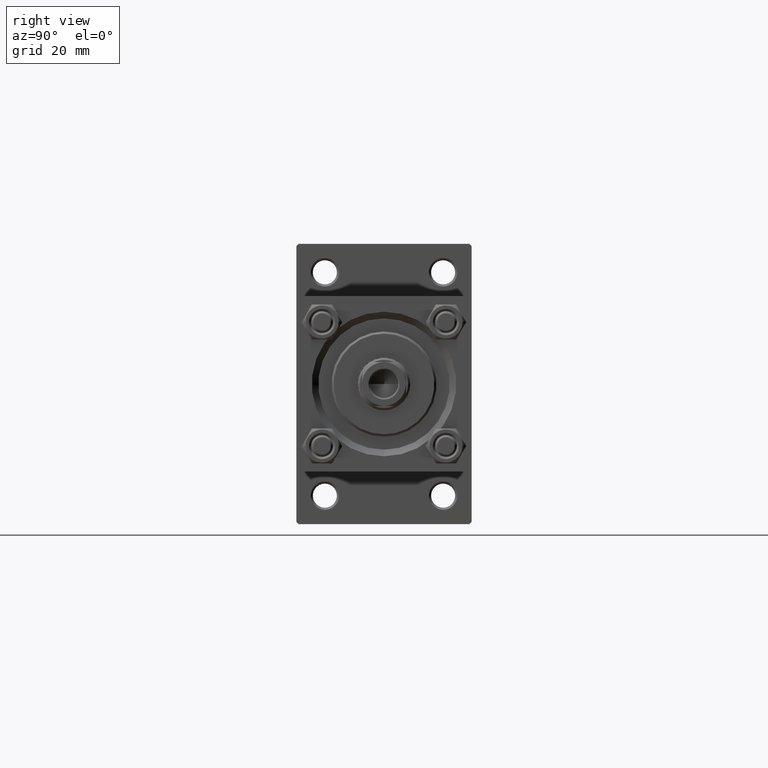
[diagram: clean part render]
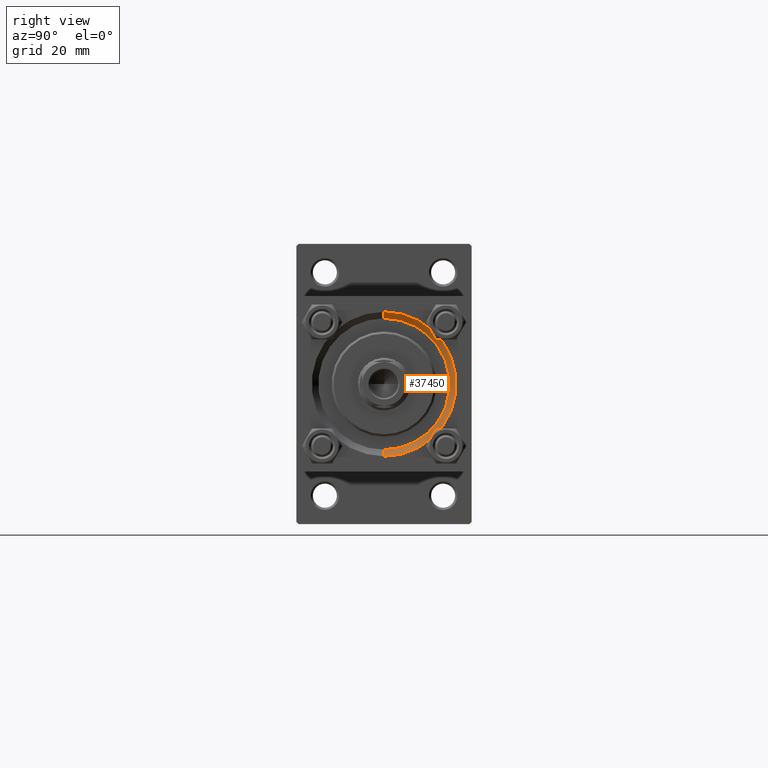
[diagram: same view with one face highlighted and labeled with its STEP entity id]
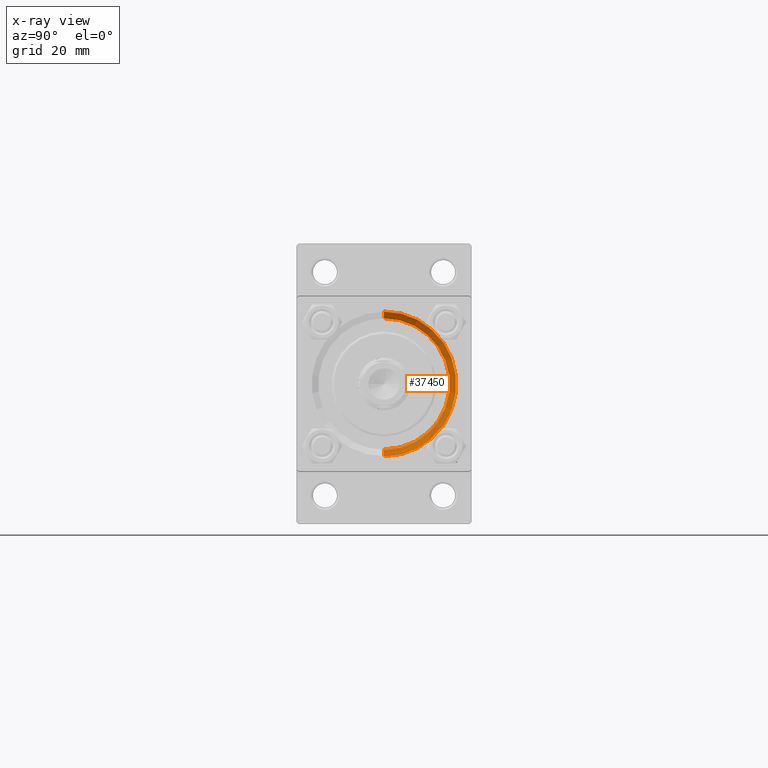
[diagram: x-ray of the same camera — body ghosted, the highlighted face saturated]
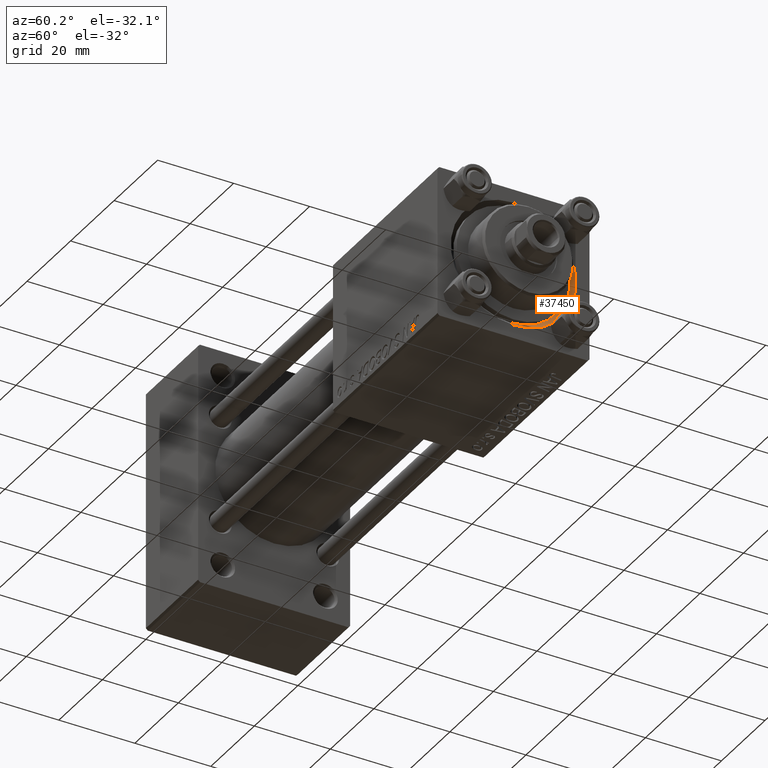
[diagram: same view with one face highlighted and labeled with its STEP entity id]
A machine part, right view. The second image highlights one B-rep face of the part: STEP entity #37450.
The next image is the same camera in x-ray: the body ghosted, the highlighted face saturated — about 0% of this face is hidden behind the body in this view.
A second angle (auxiliary view) of the same face is appended — the face is thin or edge-on in the first view.
In plain terms, the highlighted conical surface has half-angle 45 deg.
Its self-contained STEP definition (entity closure, byte-faithful):
#2350 = CARTESIAN_POINT ( 'NONE',  ( 132.5000000000000000, 1.836970198721029589E-15, 15.00000000000000000 ) ) ;
#3123 = FACE_OUTER_BOUND ( 'NONE', #22896, .T. ) ;
#4132 = AXIS2_PLACEMENT_3D ( 'NONE', #24729, #19943, #8603 ) ;
#4599 = ORIENTED_EDGE ( 'NONE', *, *, #38731, .F. ) ;
#5025 = DIRECTION ( 'NONE',  ( 1.000000000000000000, 0.000000000000000000, 0.000000000000000000 ) ) ;
#5759 = CIRCLE ( 'NONE', #4132, 16.49999999999998579 ) ;
#6866 = DIRECTION ( 'NONE',  ( 0.7071067811865507924, 0.000000000000000000, -0.7071067811865441310 ) ) ;
#7007 = CARTESIAN_POINT ( 'NONE',  ( 134.0000000000000000, 0.000000000000000000, -16.49999999999998579 ) ) ;
#8576 = CIRCLE ( 'NONE', #40044, 15.00000000000000000 ) ;
#8603 = DIRECTION ( 'NONE',  ( 0.000000000000000000, 0.000000000000000000, 1.000000000000000000 ) ) ;
#11186 = DIRECTION ( 'NONE',  ( 0.000000000000000000, 0.000000000000000000, -1.000000000000000000 ) ) ;
#12087 = DIRECTION ( 'NONE',  ( 0.000000000000000000, 0.000000000000000000, 1.000000000000000000 ) ) ;
#13414 = VERTEX_POINT ( 'NONE', #7007 ) ;
#13455 = CARTESIAN_POINT ( 'NONE',  ( 132.5000000000000000, 1.836970198721029589E-15, 15.00000000000000000 ) ) ;
#13780 = CONICAL_SURFACE ( 'NONE', #42005, 15.00000000000000000, 0.7853981633974437271 ) ;
#14390 = VERTEX_POINT ( 'NONE', #44341 ) ;
#17213 = DIRECTION ( 'NONE',  ( 0.7071067811865507924, 8.659560562354892183E-17, 0.7071067811865441310 ) ) ;
#18209 = LINE ( 'NONE', #41445, #40007 ) ;
#18492 = CARTESIAN_POINT ( 'NONE',  ( 132.5000000000000000, 0.000000000000000000, 0.000000000000000000 ) ) ;
#19943 = DIRECTION ( 'NONE',  ( -1.000000000000000000, -0.000000000000000000, -0.000000000000000000 ) ) ;
#20787 = VERTEX_POINT ( 'NONE', #43971 ) ;
#21779 = EDGE_CURVE ( 'NONE', #45387, #20787, #43757, .T. ) ;
#21926 = EDGE_CURVE ( 'NONE', #14390, #13414, #18209, .T. ) ;
#22896 = EDGE_LOOP ( 'NONE', ( #24694, #25511, #33775, #4599 ) ) ;
#23021 = DIRECTION ( 'NONE',  ( 1.000000000000000000, 0.000000000000000000, 0.000000000000000000 ) ) ;
#23117 = EDGE_CURVE ( 'NONE', #14390, #45387, #8576, .T. ) ;
#23822 = VECTOR ( 'NONE', #17213, 1000.000000000000114 ) ;
#24694 = ORIENTED_EDGE ( 'NONE', *, *, #21779, .F. ) ;
#24729 = CARTESIAN_POINT ( 'NONE',  ( 134.0000000000000000, 0.000000000000000000, 0.000000000000000000 ) ) ;
#25511 = ORIENTED_EDGE ( 'NONE', *, *, #23117, .F. ) ;
#33775 = ORIENTED_EDGE ( 'NONE', *, *, #21926, .T. ) ;
#35078 = CARTESIAN_POINT ( 'NONE',  ( 132.5000000000000000, 0.000000000000000000, 0.000000000000000000 ) ) ;
#37450 = ADVANCED_FACE ( 'NONE', ( #3123 ), #13780, .F. ) ;
#38731 = EDGE_CURVE ( 'NONE', #20787, #13414, #5759, .T. ) ;
#40007 = VECTOR ( 'NONE', #6866, 1000.000000000000114 ) ;
#40044 = AXIS2_PLACEMENT_3D ( 'NONE', #35078, #5025, #12087 ) ;
#41445 = CARTESIAN_POINT ( 'NONE',  ( 132.5000000000000000, 0.000000000000000000, -15.00000000000000000 ) ) ;
#42005 = AXIS2_PLACEMENT_3D ( 'NONE', #18492, #23021, #11186 ) ;
#43757 = LINE ( 'NONE', #2350, #23822 ) ;
#43971 = CARTESIAN_POINT ( 'NONE',  ( 134.0000000000000000, 2.020667218593131128E-15, 16.49999999999998579 ) ) ;
#44341 = CARTESIAN_POINT ( 'NONE',  ( 132.5000000000000000, 0.000000000000000000, -15.00000000000000000 ) ) ;
#45387 = VERTEX_POINT ( 'NONE', #13455 ) ;